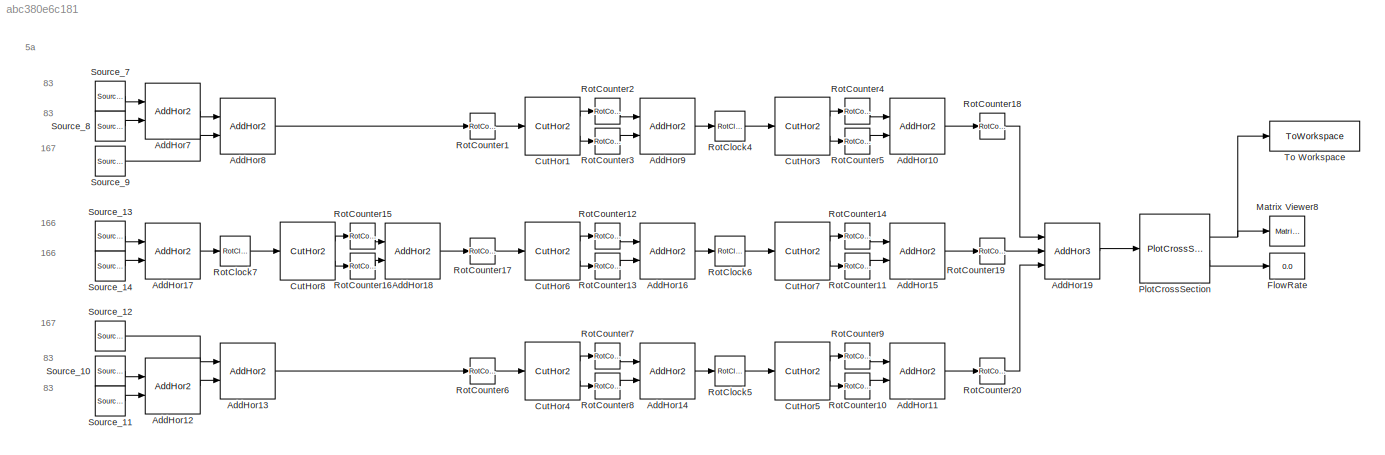
MODEL slx_abc380e6c181
KIND model
CONFIG AbsTol = auto
CONFIG EnableMultiTasking = off
CONFIG FixedStep = auto
CONFIG MaxStep = auto
CONFIG MinStep = auto
CONFIG RelTol = 1e-3
CONFIG SampleTimeConstraint = Unconstrained
CONFIG SolverName = VariableStepAuto
CONFIG StartTime = 0.0
CONFIG StopTime = 10.0
BLOCK [Reference] AddHor10  REF=myLib_CustomBoolean/AddHor2
  Ports = [2, 1]
  SourceBlock = myLib_CustomBoolean/AddHor2
  SourceProductName = Boolean_Custom_Library
BLOCK [Reference] AddHor11  REF=myLib_CustomBoolean/AddHor2
  Ports = [2, 1]
  SourceBlock = myLib_CustomBoolean/AddHor2
  SourceProductName = Boolean_Custom_Library
BLOCK [Reference] AddHor12  REF=myLib_CustomBoolean/AddHor2
  Ports = [2, 1]
  SourceBlock = myLib_CustomBoolean/AddHor2
  SourceProductName = Boolean_Custom_Library
BLOCK [Reference] AddHor13  REF=myLib_CustomBoolean/AddHor2
  Ports = [2, 1]
  SourceBlock = myLib_CustomBoolean/AddHor2
  SourceProductName = Boolean_Custom_Library
BLOCK [Reference] AddHor14  REF=myLib_CustomBoolean/AddHor2
  Ports = [2, 1]
  SourceBlock = myLib_CustomBoolean/AddHor2
  SourceProductName = Boolean_Custom_Library
BLOCK [Reference] AddHor15  REF=myLib_CustomBoolean/AddHor2
  Ports = [2, 1]
  SourceBlock = myLib_CustomBoolean/AddHor2
  SourceProductName = Boolean_Custom_Library
BLOCK [Reference] AddHor16  REF=myLib_CustomBoolean/AddHor2
  Ports = [2, 1]
  SourceBlock = myLib_CustomBoolean/AddHor2
  SourceProductName = Boolean_Custom_Library
BLOCK [Reference] AddHor17  REF=myLib_CustomBoolean/AddHor2
  Ports = [2, 1]
  SourceBlock = myLib_CustomBoolean/AddHor2
  SourceProductName = Boolean_Custom_Library
BLOCK [Reference] AddHor18  REF=myLib_CustomBoolean/AddHor2
  Ports = [2, 1]
  SourceBlock = myLib_CustomBoolean/AddHor2
  SourceProductName = Boolean_Custom_Library
BLOCK [Reference] AddHor19  REF=myLib_CustomBoolean/AddHor3
  Ports = [3, 1]
  SourceBlock = myLib_CustomBoolean/AddHor3
  SourceProductName = Boolean_Custom_Library
BLOCK [Reference] AddHor7  REF=myLib_CustomBoolean/AddHor2
  Ports = [2, 1]
  SourceBlock = myLib_CustomBoolean/AddHor2
  SourceProductName = Boolean_Custom_Library
BLOCK [Reference] AddHor8  REF=myLib_CustomBoolean/AddHor2
  Ports = [2, 1]
  SourceBlock = myLib_CustomBoolean/AddHor2
  SourceProductName = Boolean_Custom_Library
BLOCK [Reference] AddHor9  REF=myLib_CustomBoolean/AddHor2
  Ports = [2, 1]
  SourceBlock = myLib_CustomBoolean/AddHor2
  SourceProductName = Boolean_Custom_Library
BLOCK [Reference] CutHor1  REF=myLib_CustomBoolean/CutHor2
  Ports = [1, 2]
  SourceBlock = myLib_CustomBoolean/CutHor2
  SourceProductName = Boolean_Custom_Library
BLOCK [Reference] CutHor3  REF=myLib_CustomBoolean/CutHor2
  Ports = [1, 2]
  SourceBlock = myLib_CustomBoolean/CutHor2
  SourceProductName = Boolean_Custom_Library
BLOCK [Reference] CutHor4  REF=myLib_CustomBoolean/CutHor2
  Ports = [1, 2]
  SourceBlock = myLib_CustomBoolean/CutHor2
  SourceProductName = Boolean_Custom_Library
BLOCK [Reference] CutHor5  REF=myLib_CustomBoolean/CutHor2
  Ports = [1, 2]
  SourceBlock = myLib_CustomBoolean/CutHor2
  SourceProductName = Boolean_Custom_Library
BLOCK [Reference] CutHor6  REF=myLib_CustomBoolean/CutHor2
  Ports = [1, 2]
  SourceBlock = myLib_CustomBoolean/CutHor2
  SourceProductName = Boolean_Custom_Library
BLOCK [Reference] CutHor7  REF=myLib_CustomBoolean/CutHor2
  Ports = [1, 2]
  SourceBlock = myLib_CustomBoolean/CutHor2
  SourceProductName = Boolean_Custom_Library
BLOCK [Reference] CutHor8  REF=myLib_CustomBoolean/CutHor2
  Ports = [1, 2]
  SourceBlock = myLib_CustomBoolean/CutHor2
  SourceProductName = Boolean_Custom_Library
BLOCK [Display] FlowRate
  Decimation = 1
  Ports = [1]
BLOCK [Reference] Matrix Viewer8  REF=dspobslib/Matrix
Viewer
  Ports = [1]
  SourceBlock = dspobslib/Matrix\nViewer
  SourceProductBaseCode = DS
  SourceType = Matrix Viewer
BLOCK [Reference] PlotCrossSection  REF=myLib_CustomBoolean/PlotCrossSection
  Ports = [1, 2]
  SourceBlock = myLib_CustomBoolean/PlotCrossSection
  SourceProductName = Boolean_Custom_Library
  SourceType = SubSystem
BLOCK [Reference] RotClock4  REF=myLib_CustomBoolean/RotClock
  Ports = [1, 1]
  SourceBlock = myLib_CustomBoolean/RotClock
  SourceProductName = Boolean_Custom_Library
BLOCK [Reference] RotClock5  REF=myLib_CustomBoolean/RotClock
  Ports = [1, 1]
  SourceBlock = myLib_CustomBoolean/RotClock
  SourceProductName = Boolean_Custom_Library
BLOCK [Reference] RotClock6  REF=myLib_CustomBoolean/RotClock
  Ports = [1, 1]
  SourceBlock = myLib_CustomBoolean/RotClock
  SourceProductName = Boolean_Custom_Library
BLOCK [Reference] RotClock7  REF=myLib_CustomBoolean/RotClock
  Ports = [1, 1]
  SourceBlock = myLib_CustomBoolean/RotClock
  SourceProductName = Boolean_Custom_Library
BLOCK [Reference] RotCounter1  REF=myLib_CustomBoolean/RotCounter
  Ports = [1, 1]
  SourceBlock = myLib_CustomBoolean/RotCounter
  SourceProductName = Boolean_Custom_Library
BLOCK [Reference] RotCounter10  REF=myLib_CustomBoolean/RotCounter
  Ports = [1, 1]
  SourceBlock = myLib_CustomBoolean/RotCounter
  SourceProductName = Boolean_Custom_Library
BLOCK [Reference] RotCounter11  REF=myLib_CustomBoolean/RotCounter
  Ports = [1, 1]
  SourceBlock = myLib_CustomBoolean/RotCounter
  SourceProductName = Boolean_Custom_Library
BLOCK [Reference] RotCounter12  REF=myLib_CustomBoolean/RotCounter
  Ports = [1, 1]
  SourceBlock = myLib_CustomBoolean/RotCounter
  SourceProductName = Boolean_Custom_Library
BLOCK [Reference] RotCounter13  REF=myLib_CustomBoolean/RotCounter
  Ports = [1, 1]
  SourceBlock = myLib_CustomBoolean/RotCounter
  SourceProductName = Boolean_Custom_Library
BLOCK [Reference] RotCounter14  REF=myLib_CustomBoolean/RotCounter
  Ports = [1, 1]
  SourceBlock = myLib_CustomBoolean/RotCounter
  SourceProductName = Boolean_Custom_Library
BLOCK [Reference] RotCounter15  REF=myLib_CustomBoolean/RotCounter
  Ports = [1, 1]
  SourceBlock = myLib_CustomBoolean/RotCounter
  SourceProductName = Boolean_Custom_Library
BLOCK [Reference] RotCounter16  REF=myLib_CustomBoolean/RotCounter
  Ports = [1, 1]
  SourceBlock = myLib_CustomBoolean/RotCounter
  SourceProductName = Boolean_Custom_Library
BLOCK [Reference] RotCounter17  REF=myLib_CustomBoolean/RotCounter
  Ports = [1, 1]
  SourceBlock = myLib_CustomBoolean/RotCounter
  SourceProductName = Boolean_Custom_Library
BLOCK [Reference] RotCounter18  REF=myLib_CustomBoolean/RotCounter
  Ports = [1, 1]
  SourceBlock = myLib_CustomBoolean/RotCounter
  SourceProductName = Boolean_Custom_Library
BLOCK [Reference] RotCounter19  REF=myLib_CustomBoolean/RotCounter
  Ports = [1, 1]
  SourceBlock = myLib_CustomBoolean/RotCounter
  SourceProductName = Boolean_Custom_Library
BLOCK [Reference] RotCounter2  REF=myLib_CustomBoolean/RotCounter
  Ports = [1, 1]
  SourceBlock = myLib_CustomBoolean/RotCounter
  SourceProductName = Boolean_Custom_Library
BLOCK [Reference] RotCounter20  REF=myLib_CustomBoolean/RotCounter
  Ports = [1, 1]
  SourceBlock = myLib_CustomBoolean/RotCounter
  SourceProductName = Boolean_Custom_Library
BLOCK [Reference] RotCounter3  REF=myLib_CustomBoolean/RotCounter
  Ports = [1, 1]
  SourceBlock = myLib_CustomBoolean/RotCounter
  SourceProductName = Boolean_Custom_Library
BLOCK [Reference] RotCounter4  REF=myLib_CustomBoolean/RotCounter
  Ports = [1, 1]
  SourceBlock = myLib_CustomBoolean/RotCounter
  SourceProductName = Boolean_Custom_Library
BLOCK [Reference] RotCounter5  REF=myLib_CustomBoolean/RotCounter
  Ports = [1, 1]
  SourceBlock = myLib_CustomBoolean/RotCounter
  SourceProductName = Boolean_Custom_Library
BLOCK [Reference] RotCounter6  REF=myLib_CustomBoolean/RotCounter
  Ports = [1, 1]
  SourceBlock = myLib_CustomBoolean/RotCounter
  SourceProductName = Boolean_Custom_Library
BLOCK [Reference] RotCounter7  REF=myLib_CustomBoolean/RotCounter
  Ports = [1, 1]
  SourceBlock = myLib_CustomBoolean/RotCounter
  SourceProductName = Boolean_Custom_Library
BLOCK [Reference] RotCounter8  REF=myLib_CustomBoolean/RotCounter
  Ports = [1, 1]
  SourceBlock = myLib_CustomBoolean/RotCounter
  SourceProductName = Boolean_Custom_Library
BLOCK [Reference] RotCounter9  REF=myLib_CustomBoolean/RotCounter
  Ports = [1, 1]
  SourceBlock = myLib_CustomBoolean/RotCounter
  SourceProductName = Boolean_Custom_Library
BLOCK [Reference] Source_10  REF=myLib_CustomBoolean/Source_0
  Ports = [0, 1]
  SourceBlock = myLib_CustomBoolean/Source_0
  SourceProductName = Boolean_Custom_Library
BLOCK [Reference] Source_11  REF=myLib_CustomBoolean/Source_1
  Ports = [0, 1]
  SourceBlock = myLib_CustomBoolean/Source_1
  SourceProductName = Boolean_Custom_Library
BLOCK [Reference] Source_12  REF=myLib_CustomBoolean/Source_1
  Ports = [0, 1]
  SourceBlock = myLib_CustomBoolean/Source_1
  SourceProductName = Boolean_Custom_Library
BLOCK [Reference] Source_13  REF=myLib_CustomBoolean/Source_0
  Ports = [0, 1]
  SourceBlock = myLib_CustomBoolean/Source_0
  SourceProductName = Boolean_Custom_Library
BLOCK [Reference] Source_14  REF=myLib_CustomBoolean/Source_1
  Ports = [0, 1]
  SourceBlock = myLib_CustomBoolean/Source_1
  SourceProductName = Boolean_Custom_Library
BLOCK [Reference] Source_7  REF=myLib_CustomBoolean/Source_0
  Ports = [0, 1]
  SourceBlock = myLib_CustomBoolean/Source_0
  SourceProductName = Boolean_Custom_Library
BLOCK [Reference] Source_8  REF=myLib_CustomBoolean/Source_1
  Ports = [0, 1]
  SourceBlock = myLib_CustomBoolean/Source_1
  SourceProductName = Boolean_Custom_Library
BLOCK [Reference] Source_9  REF=myLib_CustomBoolean/Source_1
  Ports = [0, 1]
  SourceBlock = myLib_CustomBoolean/Source_1
  SourceProductName = Boolean_Custom_Library
BLOCK [ToWorkspace] To Workspace
  FixptAsFi = on
  MaxDataPoints = inf
  Ports = [1]
  SampleTime = 51
  VariableName = extrudateArray
ANNOTATION (root): 5a
ANNOTATION (root): 166
ANNOTATION (root): 167
ANNOTATION (root): 83
LINE AddHor10:1 -> RotCounter18:1
LINE AddHor11:1 -> RotCounter20:1
LINE AddHor12:1 -> AddHor13:2
LINE AddHor13:1 -> RotCounter6:1
LINE AddHor14:1 -> RotClock5:1
LINE AddHor15:1 -> RotCounter19:1
LINE AddHor16:1 -> RotClock6:1
LINE AddHor17:1 -> RotClock7:1
LINE AddHor18:1 -> RotCounter17:1
LINE AddHor19:1 -> PlotCrossSection:1
LINE AddHor7:1 -> AddHor8:1
LINE AddHor8:1 -> RotCounter1:1
LINE AddHor9:1 -> RotClock4:1
LINE CutHor1:1 -> RotCounter2:1
LINE CutHor1:2 -> RotCounter3:1
LINE CutHor3:1 -> RotCounter4:1
LINE CutHor3:2 -> RotCounter5:1
LINE CutHor4:1 -> RotCounter7:1
LINE CutHor4:2 -> RotCounter8:1
LINE CutHor5:1 -> RotCounter9:1
LINE CutHor5:2 -> RotCounter10:1
LINE CutHor6:1 -> RotCounter12:1
LINE CutHor6:2 -> RotCounter13:1
LINE CutHor7:1 -> RotCounter14:1
LINE CutHor7:2 -> RotCounter11:1
LINE CutHor8:1 -> RotCounter15:1
LINE CutHor8:2 -> RotCounter16:1
NET PlotCrossSection:1 -> Matrix Viewer8:1, To Workspace:1
LINE PlotCrossSection:2 -> FlowRate:1
LINE RotClock4:1 -> CutHor3:1
LINE RotClock5:1 -> CutHor5:1
LINE RotClock6:1 -> CutHor7:1
LINE RotClock7:1 -> CutHor8:1
LINE RotCounter10:1 -> AddHor11:2
LINE RotCounter11:1 -> AddHor15:2
LINE RotCounter12:1 -> AddHor16:1
LINE RotCounter13:1 -> AddHor16:2
LINE RotCounter14:1 -> AddHor15:1
LINE RotCounter15:1 -> AddHor18:1
LINE RotCounter16:1 -> AddHor18:2
LINE RotCounter17:1 -> CutHor6:1
LINE RotCounter18:1 -> AddHor19:1
LINE RotCounter19:1 -> AddHor19:2
LINE RotCounter1:1 -> CutHor1:1
LINE RotCounter20:1 -> AddHor19:3
LINE RotCounter2:1 -> AddHor9:1
LINE RotCounter3:1 -> AddHor9:2
LINE RotCounter4:1 -> AddHor10:1
LINE RotCounter5:1 -> AddHor10:2
LINE RotCounter6:1 -> CutHor4:1
LINE RotCounter7:1 -> AddHor14:1
LINE RotCounter8:1 -> AddHor14:2
LINE RotCounter9:1 -> AddHor11:1
LINE Source_10:1 -> AddHor12:1
LINE Source_11:1 -> AddHor12:2
LINE Source_12:1 -> AddHor13:1
LINE Source_13:1 -> AddHor17:1
LINE Source_14:1 -> AddHor17:2
LINE Source_7:1 -> AddHor7:1
LINE Source_8:1 -> AddHor7:2
LINE Source_9:1 -> AddHor8:2
note: NET lines group one-source signal fan-out (src -> all destinations, sorted); 1:1 wires keep LINE
